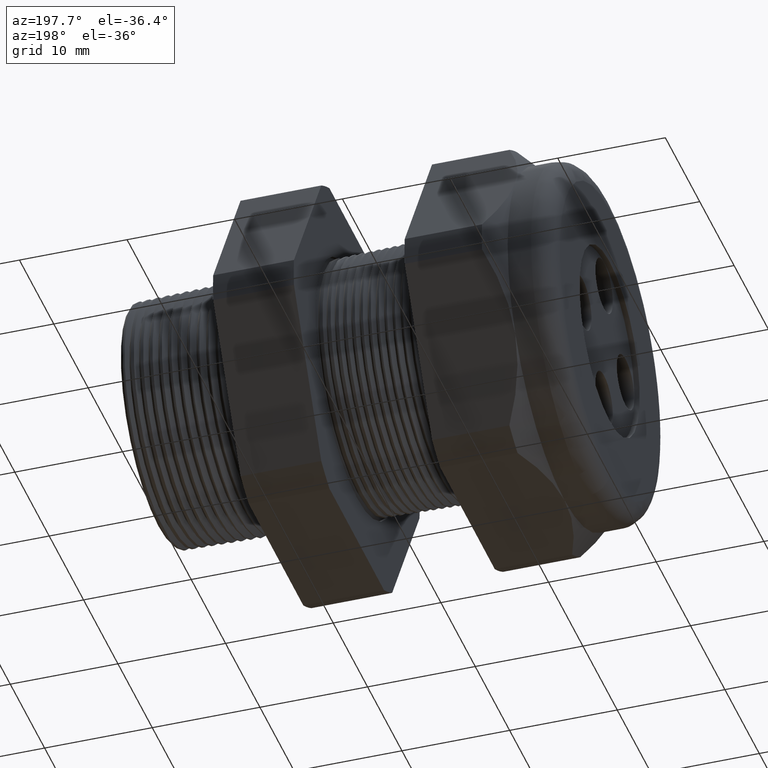
[diagram: clean part render]
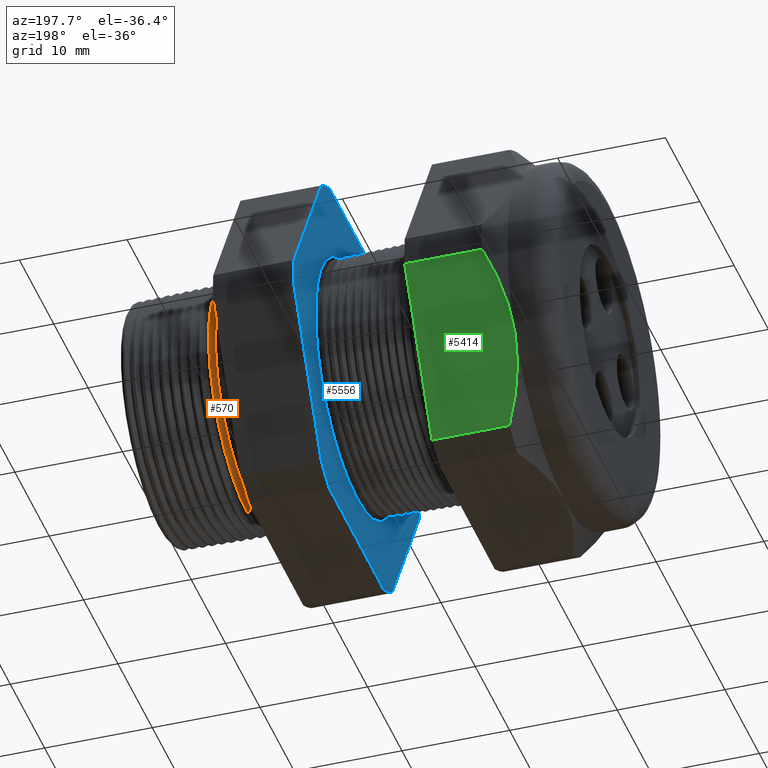
[diagram: same view with three faces highlighted in distinct colors, each labeled with its STEP entity id]
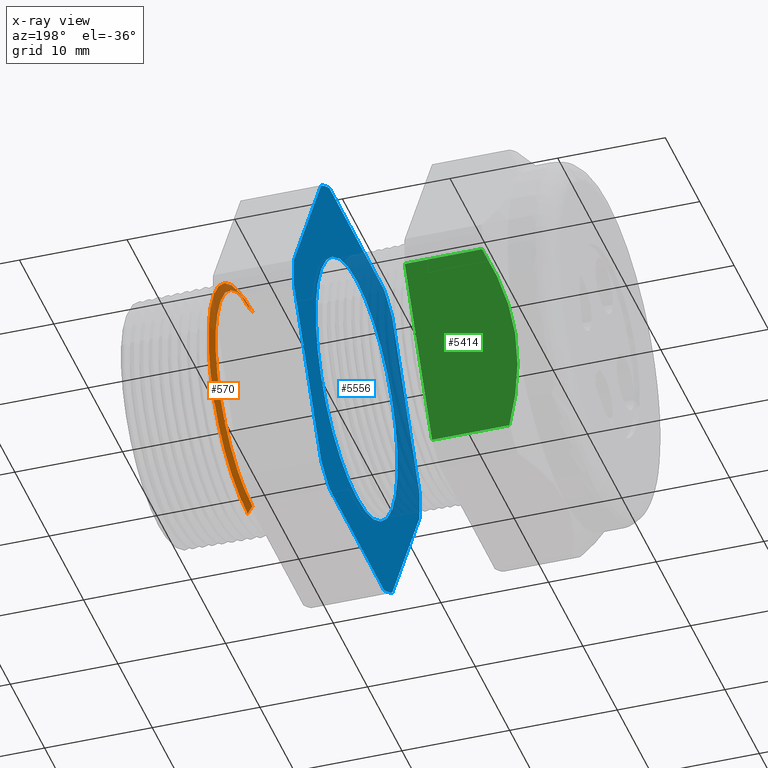
[diagram: x-ray of the same camera — body ghosted, the three highlighted faces saturated]
A machine part, auxiliary view with three faces highlighted in distinct colors.
The next image is the same camera in x-ray (body ghosted, the three faces saturated) — at least one of them is partly hidden behind the body in this view.
Their STEP definitions:

[orange] entity #570 — the highlighted conical surface has half-angle 58.5 deg.
#550 = ORIENTED_EDGE ( 'NONE', *, *, #551, .T. ) ;
#551 = EDGE_CURVE ( 'NONE', #556, #557, #2008, .T. ) ;
#556 = VERTEX_POINT ( 'NONE', #1996 ) ;
#557 = VERTEX_POINT ( 'NONE', #1995 ) ;
#558 = ORIENTED_EDGE ( 'NONE', *, *, #578, .T. ) ;
#559 = VERTEX_POINT ( 'NONE', #1994 ) ;
#570 = ADVANCED_FACE ( 'NONE', ( #2038 ), #2036, .T. ) ;
#571 = EDGE_LOOP ( 'NONE', ( #550, #558, #579, #604 ) ) ;
#578 = EDGE_CURVE ( 'NONE', #557, #559, #2021, .T. ) ;
#579 = ORIENTED_EDGE ( 'NONE', *, *, #606, .T. ) ;
#597 = VERTEX_POINT ( 'NONE', #2046 ) ;
#604 = ORIENTED_EDGE ( 'NONE', *, *, #617, .F. ) ;
#606 = EDGE_CURVE ( 'NONE', #559, #597, #2090, .T. ) ;
#617 = EDGE_CURVE ( 'NONE', #556, #597, #2132, .T. ) ;
#1994 = CARTESIAN_POINT ( 'NONE',  ( -0.2064763869881524300, 0.0000000000000000000, 0.4489507461563352900 ) ) ;
#1995 = CARTESIAN_POINT ( 'NONE',  ( -0.2234707356790752200, 0.0000000000000000000, 0.4212184895733915900 ) ) ;
#1996 = CARTESIAN_POINT ( 'NONE',  ( -0.2234707356790752200, 5.333463225220223000E-017, -0.4212184895733915900 ) ) ;
#2004 = DIRECTION ( 'NONE',  ( 0.0000000000000000000, 0.0000000000000000000, -1.000000000000000000 ) ) ;
#2005 = DIRECTION ( 'NONE',  ( 1.000000000000000000, 0.0000000000000000000, 0.0000000000000000000 ) ) ;
#2006 = CARTESIAN_POINT ( 'NONE',  ( -0.2234707356790752200, 0.0000000000000000000, 0.0000000000000000000 ) ) ;
#2007 = AXIS2_PLACEMENT_3D ( 'NONE', #2006, #2005, #2004 ) ;
#2008 = CIRCLE ( 'NONE', #2007, 0.4212184895733915900 ) ;
#2018 = DIRECTION ( 'NONE',  ( 0.5224985647159347000, 1.044183048100722800E-016, 0.8526401643541008400 ) ) ;
#2019 = VECTOR ( 'NONE', #2018, 39.37007874015748100 ) ;
#2020 = CARTESIAN_POINT ( 'NONE',  ( -0.2234707356790752200, 5.158438749977368000E-017, 0.4212184895733915900 ) ) ;
#2021 = LINE ( 'NONE', #2020, #2019 ) ;
#2032 = DIRECTION ( 'NONE',  ( 0.0000000000000000000, 0.0000000000000000000, -1.000000000000000000 ) ) ;
#2033 = DIRECTION ( 'NONE',  ( 1.000000000000000000, 0.0000000000000000000, 0.0000000000000000000 ) ) ;
#2034 = CARTESIAN_POINT ( 'NONE',  ( -0.2234707356790752200, 0.0000000000000000000, 0.0000000000000000000 ) ) ;
#2035 = AXIS2_PLACEMENT_3D ( 'NONE', #2034, #2033, #2032 ) ;
#2036 = CONICAL_SURFACE ( 'NONE', #2035, 0.4212184895733915900, 1.021017612416699400 ) ;
#2038 = FACE_OUTER_BOUND ( 'NONE', #571, .T. ) ;
#2046 = CARTESIAN_POINT ( 'NONE',  ( -0.2064763869881524300, 5.498060942551718200E-017, -0.4489507461563352900 ) ) ;
#2087 = DIRECTION ( 'NONE',  ( 0.0000000000000000000, 0.0000000000000000000, -1.000000000000000000 ) ) ;
#2088 = DIRECTION ( 'NONE',  ( -1.000000000000000000, 0.0000000000000000000, 0.0000000000000000000 ) ) ;
#2089 = AXIS2_PLACEMENT_3D ( 'NONE', #2096, #2088, #2087 ) ;
#2090 = CIRCLE ( 'NONE', #2089, 0.4489507461563351800 ) ;
#2096 = CARTESIAN_POINT ( 'NONE',  ( -0.2064763869881524300, 0.0000000000000000000, 0.0000000000000000000 ) ) ;
#2129 = DIRECTION ( 'NONE',  ( 0.5224985647159347000, 0.0000000000000000000, -0.8526401643541008400 ) ) ;
#2130 = VECTOR ( 'NONE', #2129, 39.37007874015748100 ) ;
#2131 = CARTESIAN_POINT ( 'NONE',  ( -0.2234707356790752200, 0.0000000000000000000, -0.4212184895733915900 ) ) ;
#2132 = LINE ( 'NONE', #2131, #2130 ) ;

[blue] entity #5556 — the highlighted planar face has unit normal (-1, 0, 0).
#511 = EDGE_CURVE ( 'NONE', #595, #512, #1941, .T. ) ;
#512 = VERTEX_POINT ( 'NONE', #1932 ) ;
#595 = VERTEX_POINT ( 'NONE', #2051 ) ;
#1932 = CARTESIAN_POINT ( 'NONE',  ( -0.6052755905511809600, 0.0000000000000000000, 0.4696061802346682100 ) ) ;
#1933 = DIRECTION ( 'NONE',  ( 0.0000000000000000000, 0.0000000000000000000, 1.000000000000000000 ) ) ;
#1934 = DIRECTION ( 'NONE',  ( -1.000000000000000000, 0.0000000000000000000, 0.0000000000000000000 ) ) ;
#1935 = CARTESIAN_POINT ( 'NONE',  ( -0.6052755905511809600, 0.0000000000000000000, 0.0000000000000000000 ) ) ;
#1936 = AXIS2_PLACEMENT_3D ( 'NONE', #1935, #1934, #1933 ) ;
#1941 = CIRCLE ( 'NONE', #1936, 0.4696061802346682700 ) ;
#2051 = CARTESIAN_POINT ( 'NONE',  ( -0.6052755905511809600, 5.751017054842014700E-017, -0.4696061802346682100 ) ) ;
#3264 = AXIS2_PLACEMENT_3D ( 'NONE', #3326, #3325, #3324 ) ;
#3265 = CIRCLE ( 'NONE', #3264, 0.7214999999999999200 ) ;
#3266 = CARTESIAN_POINT ( 'NONE',  ( -0.6052755905511810800, -0.7194909755756819800, 0.05380507471562025900 ) ) ;
#3267 = CARTESIAN_POINT ( 'NONE',  ( -0.6052755905511810800, 0.7194909755756818700, -0.05380507471562089700 ) ) ;
#3268 = DIRECTION ( 'NONE',  ( 0.0000000000000000000, -0.4999999999999996100, -0.8660254037844388200 ) ) ;
#3269 = VECTOR ( 'NONE', #3268, 39.37007874015748900 ) ;
#3270 = CARTESIAN_POINT ( 'NONE',  ( -0.6052755905511809600, 0.8879165124598849000, 0.2379165124598850200 ) ) ;
#3271 = LINE ( 'NONE', #3270, #3269 ) ;
#3272 = CARTESIAN_POINT ( 'NONE',  ( -0.6052755905511809600, 0.4063420493440886800, -0.5961949252843791200 ) ) ;
#3273 = CARTESIAN_POINT ( 'NONE',  ( -0.6052755905511810800, 0.3131489262315934100, -0.6500000000000001300 ) ) ;
#3274 = DIRECTION ( 'NONE',  ( 0.0000000000000000000, 0.0000000000000000000, 1.000000000000000000 ) ) ;
#3275 = DIRECTION ( 'NONE',  ( -1.000000000000000000, 0.0000000000000000000, 0.0000000000000000000 ) ) ;
#3276 = CARTESIAN_POINT ( 'NONE',  ( -0.6052755905511810800, 0.0000000000000000000, 0.0000000000000000000 ) ) ;
#3277 = AXIS2_PLACEMENT_3D ( 'NONE', #3276, #3275, #3274 ) ;
#3278 = CIRCLE ( 'NONE', #3277, 0.7215000000000000300 ) ;
#3296 = AXIS2_PLACEMENT_3D ( 'NONE', #3359, #3358, #3357 ) ;
#3297 = CIRCLE ( 'NONE', #3296, 0.7215000000000000300 ) ;
#3298 = DIRECTION ( 'NONE',  ( 0.0000000000000000000, -0.5000000000000001100, 0.8660254037844386000 ) ) ;
#3299 = VECTOR ( 'NONE', #3298, 39.37007874015748100 ) ;
#3300 = CARTESIAN_POINT ( 'NONE',  ( -0.6052755905511809600, -0.2379165124598852700, -0.8879165124598854500 ) ) ;
#3301 = LINE ( 'NONE', #3300, #3299 ) ;
#3302 = DIRECTION ( 'NONE',  ( 0.0000000000000000000, -1.000000000000000000, 0.0000000000000000000 ) ) ;
#3303 = VECTOR ( 'NONE', #3302, 39.37007874015748100 ) ;
#3304 = CARTESIAN_POINT ( 'NONE',  ( -0.6052755905511809600, 1.300000000000000000, -0.6500000000000001300 ) ) ;
#3305 = LINE ( 'NONE', #3304, #3303 ) ;
#3306 = CARTESIAN_POINT ( 'NONE',  ( -0.6052755905511810800, -0.4063420493440881300, -0.5961949252843793400 ) ) ;
#3307 = CARTESIAN_POINT ( 'NONE',  ( -0.6052755905511810800, -0.7194909755756819800, -0.05380507471562082100 ) ) ;
#3308 = DIRECTION ( 'NONE',  ( 0.0000000000000000000, 0.0000000000000000000, 1.000000000000000000 ) ) ;
#3309 = DIRECTION ( 'NONE',  ( -1.000000000000000000, 0.0000000000000000000, 0.0000000000000000000 ) ) ;
#3310 = CARTESIAN_POINT ( 'NONE',  ( -0.6052755905511810800, 0.0000000000000000000, 0.0000000000000000000 ) ) ;
#3311 = AXIS2_PLACEMENT_3D ( 'NONE', #3310, #3309, #3308 ) ;
#3312 = CIRCLE ( 'NONE', #3311, 0.7215000000000000300 ) ;
#3313 = CARTESIAN_POINT ( 'NONE',  ( -0.6052755905511810800, 0.7194909755756817600, 0.05380507471562173000 ) ) ;
#3314 = DIRECTION ( 'NONE',  ( 0.0000000000000000000, 0.4999999999999995600, 0.8660254037844388200 ) ) ;
#3315 = VECTOR ( 'NONE', #3314, 39.37007874015748900 ) ;
#3316 = CARTESIAN_POINT ( 'NONE',  ( -0.6052755905511809600, -0.2379165124598858200, 0.8879165124598844500 ) ) ;
#3317 = LINE ( 'NONE', #3316, #3315 ) ;
#3318 = CARTESIAN_POINT ( 'NONE',  ( -0.6052755905511810800, 0.4063420493440890700, 0.5961949252843787800 ) ) ;
#3319 = DIRECTION ( 'NONE',  ( 0.0000000000000000000, 0.4999999999999998900, -0.8660254037844386000 ) ) ;
#3320 = VECTOR ( 'NONE', #3319, 39.37007874015748100 ) ;
#3321 = CARTESIAN_POINT ( 'NONE',  ( -0.6052755905511809600, 0.8879165124598854500, -0.2379165124598849300 ) ) ;
#3322 = LINE ( 'NONE', #3321, #3320 ) ;
#3323 = CARTESIAN_POINT ( 'NONE',  ( -0.6052755905511810800, -0.4063420493440885700, 0.5961949252843791200 ) ) ;
#3324 = DIRECTION ( 'NONE',  ( 0.0000000000000000000, 0.0000000000000000000, 1.000000000000000000 ) ) ;
#3325 = DIRECTION ( 'NONE',  ( -1.000000000000000000, 0.0000000000000000000, 0.0000000000000000000 ) ) ;
#3326 = CARTESIAN_POINT ( 'NONE',  ( -0.6052755905511810800, 0.0000000000000000000, 0.0000000000000000000 ) ) ;
#3356 = CARTESIAN_POINT ( 'NONE',  ( -0.6052755905511810800, -0.3131489262315934100, -0.6500000000000001300 ) ) ;
#3357 = DIRECTION ( 'NONE',  ( 0.0000000000000000000, 0.0000000000000000000, 1.000000000000000000 ) ) ;
#3358 = DIRECTION ( 'NONE',  ( -1.000000000000000000, 0.0000000000000000000, 0.0000000000000000000 ) ) ;
#3359 = CARTESIAN_POINT ( 'NONE',  ( -0.6052755905511810800, 0.0000000000000000000, 0.0000000000000000000 ) ) ;
#3585 = CARTESIAN_POINT ( 'NONE',  ( -0.6052755905511810800, -0.3131489262315937400, 0.6500000000000000200 ) ) ;
#3586 = DIRECTION ( 'NONE',  ( 0.0000000000000000000, 0.0000000000000000000, 1.000000000000000000 ) ) ;
#3587 = DIRECTION ( 'NONE',  ( -1.000000000000000000, 0.0000000000000000000, 0.0000000000000000000 ) ) ;
#3588 = CARTESIAN_POINT ( 'NONE',  ( -0.6052755905511810800, 0.0000000000000000000, 0.0000000000000000000 ) ) ;
#3589 = AXIS2_PLACEMENT_3D ( 'NONE', #3588, #3587, #3586 ) ;
#3590 = CIRCLE ( 'NONE', #3589, 0.7215000000000000300 ) ;
#3591 = DIRECTION ( 'NONE',  ( 0.0000000000000000000, 1.000000000000000000, 0.0000000000000000000 ) ) ;
#3592 = VECTOR ( 'NONE', #3591, 39.37007874015748100 ) ;
#3593 = CARTESIAN_POINT ( 'NONE',  ( -0.6052755905511809600, 1.300000000000000000, 0.6499999999999999100 ) ) ;
#3599 = LINE ( 'NONE', #3593, #3592 ) ;
#3621 = DIRECTION ( 'NONE',  ( 0.0000000000000000000, 0.0000000000000000000, 1.000000000000000000 ) ) ;
#3622 = DIRECTION ( 'NONE',  ( -1.000000000000000000, 0.0000000000000000000, 0.0000000000000000000 ) ) ;
#3623 = AXIS2_PLACEMENT_3D ( 'NONE', #3629, #3622, #3621 ) ;
#3624 = CIRCLE ( 'NONE', #3623, 0.7215000000000000300 ) ;
#3629 = CARTESIAN_POINT ( 'NONE',  ( -0.6052755905511810800, 0.0000000000000000000, 0.0000000000000000000 ) ) ;
#3632 = CARTESIAN_POINT ( 'NONE',  ( -0.6052755905511810800, 0.3131489262315937900, 0.6499999999999999100 ) ) ;
#4031 = ORIENTED_EDGE ( 'NONE', *, *, #4032, .T. ) ;
#4032 = EDGE_CURVE ( 'NONE', #4034, #4033, #3278, .T. ) ;
#4033 = VERTEX_POINT ( 'NONE', #3273 ) ;
#4034 = VERTEX_POINT ( 'NONE', #3272 ) ;
#4035 = EDGE_CURVE ( 'NONE', #4037, #4034, #3271, .T. ) ;
#4036 = ORIENTED_EDGE ( 'NONE', *, *, #4035, .T. ) ;
#4037 = VERTEX_POINT ( 'NONE', #3267 ) ;
#4038 = ORIENTED_EDGE ( 'NONE', *, *, #511, .F. ) ;
#4039 = ORIENTED_EDGE ( 'NONE', *, *, #4042, .T. ) ;
#4040 = VERTEX_POINT ( 'NONE', #3266 ) ;
#4041 = ORIENTED_EDGE ( 'NONE', *, *, #4046, .T. ) ;
#4042 = EDGE_CURVE ( 'NONE', #4048, #4037, #3265, .T. ) ;
#4043 = VERTEX_POINT ( 'NONE', #3323 ) ;
#4044 = EDGE_CURVE ( 'NONE', #4045, #4048, #3322, .T. ) ;
#4045 = VERTEX_POINT ( 'NONE', #3318 ) ;
#4046 = EDGE_CURVE ( 'NONE', #4040, #4043, #3317, .T. ) ;
#4047 = ORIENTED_EDGE ( 'NONE', *, *, #4044, .T. ) ;
#4048 = VERTEX_POINT ( 'NONE', #3313 ) ;
#4049 = EDGE_LOOP ( 'NONE', ( #4047, #4039, #4036, #4031, #4055, #4053, #4057, #4052, #4041, #4227, #4221, #4236 ) ) ;
#4050 = EDGE_CURVE ( 'NONE', #4051, #4040, #3312, .T. ) ;
#4051 = VERTEX_POINT ( 'NONE', #3307 ) ;
#4052 = ORIENTED_EDGE ( 'NONE', *, *, #4050, .T. ) ;
#4053 = ORIENTED_EDGE ( 'NONE', *, *, #4060, .T. ) ;
#4054 = VERTEX_POINT ( 'NONE', #3306 ) ;
#4055 = ORIENTED_EDGE ( 'NONE', *, *, #4056, .T. ) ;
#4056 = EDGE_CURVE ( 'NONE', #4033, #4061, #3305, .T. ) ;
#4057 = ORIENTED_EDGE ( 'NONE', *, *, #4059, .T. ) ;
#4059 = EDGE_CURVE ( 'NONE', #4054, #4051, #3301, .T. ) ;
#4060 = EDGE_CURVE ( 'NONE', #4061, #4054, #3297, .T. ) ;
#4061 = VERTEX_POINT ( 'NONE', #3356 ) ;
#4220 = EDGE_CURVE ( 'NONE', #4224, #4235, #3599, .T. ) ;
#4221 = ORIENTED_EDGE ( 'NONE', *, *, #4220, .T. ) ;
#4222 = EDGE_CURVE ( 'NONE', #4043, #4224, #3590, .T. ) ;
#4224 = VERTEX_POINT ( 'NONE', #3585 ) ;
#4227 = ORIENTED_EDGE ( 'NONE', *, *, #4222, .T. ) ;
#4235 = VERTEX_POINT ( 'NONE', #3632 ) ;
#4236 = ORIENTED_EDGE ( 'NONE', *, *, #4238, .T. ) ;
#4238 = EDGE_CURVE ( 'NONE', #4235, #4045, #3624, .T. ) ;
#4757 = DIRECTION ( 'NONE',  ( 0.0000000000000000000, 0.0000000000000000000, 1.000000000000000000 ) ) ;
#4758 = DIRECTION ( 'NONE',  ( -1.000000000000000000, 0.0000000000000000000, 0.0000000000000000000 ) ) ;
#4759 = CARTESIAN_POINT ( 'NONE',  ( -0.6052755905511809600, 0.0000000000000000000, 0.0000000000000000000 ) ) ;
#4760 = AXIS2_PLACEMENT_3D ( 'NONE', #4759, #4758, #4757 ) ;
#4761 = CIRCLE ( 'NONE', #4760, 0.4696061802346682700 ) ;
#4805 = DIRECTION ( 'NONE',  ( 0.0000000000000000000, 0.0000000000000000000, 1.000000000000000000 ) ) ;
#4806 = DIRECTION ( 'NONE',  ( -1.000000000000000000, 0.0000000000000000000, 0.0000000000000000000 ) ) ;
#4807 = CARTESIAN_POINT ( 'NONE',  ( -0.6052755905511809600, 1.300000000000000000, 0.0000000000000000000 ) ) ;
#4808 = AXIS2_PLACEMENT_3D ( 'NONE', #4807, #4806, #4805 ) ;
#4809 = PLANE ( 'NONE',  #4808 ) ;
#4810 = FACE_OUTER_BOUND ( 'NONE', #4049, .T. ) ;
#4811 = FACE_BOUND ( 'NONE', #5554, .T. ) ;
#5544 = EDGE_CURVE ( 'NONE', #512, #595, #4761, .T. ) ;
#5549 = ORIENTED_EDGE ( 'NONE', *, *, #5544, .F. ) ;
#5554 = EDGE_LOOP ( 'NONE', ( #5549, #4038 ) ) ;
#5556 = ADVANCED_FACE ( 'NONE', ( #4811, #4810 ), #4809, .T. ) ;

[green] entity #5414 — the highlighted planar face has unit normal (0, 0.866, -0.5).
#3766 = CARTESIAN_POINT ( 'NONE',  ( -1.364645669291338500, 0.5629165124598853900, -0.3249999999999999000 ) ) ;
#4306 = VERTEX_POINT ( 'NONE', #3766 ) ;
#4440 = CARTESIAN_POINT ( 'NONE',  ( -1.010314960629921100, 0.4063420493440886800, -0.5961949252843790100 ) ) ;
#4453 = CARTESIAN_POINT ( 'NONE',  ( -1.364645669291338500, 0.5629165124598853900, -0.3249999999999999000 ) ) ;
#4454 = CARTESIAN_POINT ( 'NONE',  ( -1.364645669291338200, 0.5561389602113054900, -0.3367390648454929900 ) ) ;
#4455 = CARTESIAN_POINT ( 'NONE',  ( -1.364216759191441600, 0.5492994181763348700, -0.3485854991505651400 ) ) ;
#4456 = CARTESIAN_POINT ( 'NONE',  ( -1.362513212994342700, 0.5357104722797964000, -0.3721222438646743500 ) ) ;
#4457 = CARTESIAN_POINT ( 'NONE',  ( -1.361244147852753300, 0.5289679975772974000, -0.3838005526181506600 ) ) ;
#4458 = CARTESIAN_POINT ( 'NONE',  ( -1.356260635251699500, 0.5088871528993772500, -0.4185815958592073400 ) ) ;
#4459 = CARTESIAN_POINT ( 'NONE',  ( -1.351369503974021000, 0.4956954080403318000, -0.4414303681955598600 ) ) ;
#4460 = CARTESIAN_POINT ( 'NONE',  ( -1.332638942225223800, 0.4566257321431003700, -0.5091010318848138100 ) ) ;
#4461 = CARTESIAN_POINT ( 'NONE',  ( -1.314767232512606100, 0.4312502584378785600, -0.5530526416083856300 ) ) ;
#4462 = CARTESIAN_POINT ( 'NONE',  ( -1.293145669291338600, 0.4063420493440886800, -0.5961949252843791200 ) ) ;
#4465 = CARTESIAN_POINT ( 'NONE',  ( -1.293145669291338600, 0.4063420493440886800, -0.5961949252843791200 ) ) ;
#4467 = B_SPLINE_CURVE_WITH_KNOTS ( 'NONE', 3,
 ( #4462, #4461, #4460, #4459, #4458, #4457, #4456, #4455, #4454, #4453 ),
 .UNSPECIFIED., .F., .F.,
 ( 4, 2, 2, 2, 4 ),
 ( 2.483249165329356400E-007, 0.004082012451910161500, 0.006122894515406973400, 0.007143335547155376400, 0.008163776578903778400 ),
 .UNSPECIFIED. ) ;
#4468 = DIRECTION ( 'NONE',  ( 0.0000000000000000000, 0.4999999999999996100, 0.8660254037844388200 ) ) ;
#4469 = DIRECTION ( 'NONE',  ( 0.0000000000000000000, 0.8660254037844388200, -0.4999999999999996100 ) ) ;
#4470 = CARTESIAN_POINT ( 'NONE',  ( 0.1200000000000000900, 0.7194909755756818700, -0.05380507471562089700 ) ) ;
#4471 = AXIS2_PLACEMENT_3D ( 'NONE', #4470, #4469, #4468 ) ;
#4472 = PLANE ( 'NONE',  #4471 ) ;
#4473 = FACE_OUTER_BOUND ( 'NONE', #5412, .T. ) ;
#4480 = DIRECTION ( 'NONE',  ( -1.000000000000000000, 0.0000000000000000000, 0.0000000000000000000 ) ) ;
#4481 = VECTOR ( 'NONE', #4480, 39.37007874015748100 ) ;
#4482 = CARTESIAN_POINT ( 'NONE',  ( 0.1200000000000000900, 0.4063420493440886800, -0.5961949252843790100 ) ) ;
#4483 = LINE ( 'NONE', #4482, #4481 ) ;
#4499 = CARTESIAN_POINT ( 'NONE',  ( -1.293145669291338800, 0.7194909755756818700, -0.05380507471562091100 ) ) ;
#4500 = CARTESIAN_POINT ( 'NONE',  ( -1.314794001287756400, 0.6945519286445999100, -0.09700077109259963600 ) ) ;
#4501 = CARTESIAN_POINT ( 'NONE',  ( -1.332917759362547900, 0.6687756690813084800, -0.1416465622853038700 ) ) ;
#4502 = CARTESIAN_POINT ( 'NONE',  ( -1.357805912917037400, 0.6165592345672921100, -0.2320880798536731300 ) ) ;
#4504 = CARTESIAN_POINT ( 'NONE',  ( -1.364645669291338000, 0.5900081318517967900, -0.2780759387538906900 ) ) ;
#4505 = CARTESIAN_POINT ( 'NONE',  ( -1.364645669291338500, 0.5629165124598853900, -0.3249999999999999000 ) ) ;
#4507 = B_SPLINE_CURVE_WITH_KNOTS ( 'NONE', 3,
 ( #4505, #4504, #4502, #4501, #4500, #4499 ),
 .UNSPECIFIED., .F., .F.,
 ( 4, 2, 4 ),
 ( 0.008163776578903778400, 0.01224274182034618800, 0.01632170706178859600 ),
 .UNSPECIFIED. ) ;
#4508 = CARTESIAN_POINT ( 'NONE',  ( -1.293145669291338800, 0.7194909755756818700, -0.05380507471562091100 ) ) ;
#4514 = CARTESIAN_POINT ( 'NONE',  ( -1.010314960629921100, 0.7194909755756818700, -0.05380507471562089000 ) ) ;
#4515 = DIRECTION ( 'NONE',  ( -1.000000000000000000, 0.0000000000000000000, 0.0000000000000000000 ) ) ;
#4516 = VECTOR ( 'NONE', #4515, 39.37007874015748100 ) ;
#4517 = CARTESIAN_POINT ( 'NONE',  ( 0.1200000000000000900, 0.7194909755756818700, -0.05380507471562089700 ) ) ;
#4518 = LINE ( 'NONE', #4517, #4516 ) ;
#4525 = DIRECTION ( 'NONE',  ( 0.0000000000000000000, 0.4999999999999996100, 0.8660254037844388200 ) ) ;
#4526 = VECTOR ( 'NONE', #4525, 39.37007874015748900 ) ;
#4527 = CARTESIAN_POINT ( 'NONE',  ( -1.010314960629921100, 0.6804165124598852100, -0.1214840301106568700 ) ) ;
#4528 = LINE ( 'NONE', #4527, #4526 ) ;
#5384 = ORIENTED_EDGE ( 'NONE', *, *, #5426, .T. ) ;
#5387 = EDGE_CURVE ( 'NONE', #5389, #4306, #4467, .T. ) ;
#5389 = VERTEX_POINT ( 'NONE', #4465 ) ;
#5392 = ORIENTED_EDGE ( 'NONE', *, *, #5387, .T. ) ;
#5397 = VERTEX_POINT ( 'NONE', #4440 ) ;
#5405 = ORIENTED_EDGE ( 'NONE', *, *, #5407, .T. ) ;
#5407 = EDGE_CURVE ( 'NONE', #5397, #5389, #4483, .T. ) ;
#5412 = EDGE_LOOP ( 'NONE', ( #5405, #5392, #5384, #5424, #5418 ) ) ;
#5414 = ADVANCED_FACE ( 'NONE', ( #4473 ), #4472, .T. ) ;
#5416 = EDGE_CURVE ( 'NONE', #5397, #5422, #4528, .T. ) ;
#5418 = ORIENTED_EDGE ( 'NONE', *, *, #5416, .F. ) ;
#5421 = EDGE_CURVE ( 'NONE', #5422, #5425, #4518, .T. ) ;
#5422 = VERTEX_POINT ( 'NONE', #4514 ) ;
#5424 = ORIENTED_EDGE ( 'NONE', *, *, #5421, .F. ) ;
#5425 = VERTEX_POINT ( 'NONE', #4508 ) ;
#5426 = EDGE_CURVE ( 'NONE', #4306, #5425, #4507, .T. ) ;